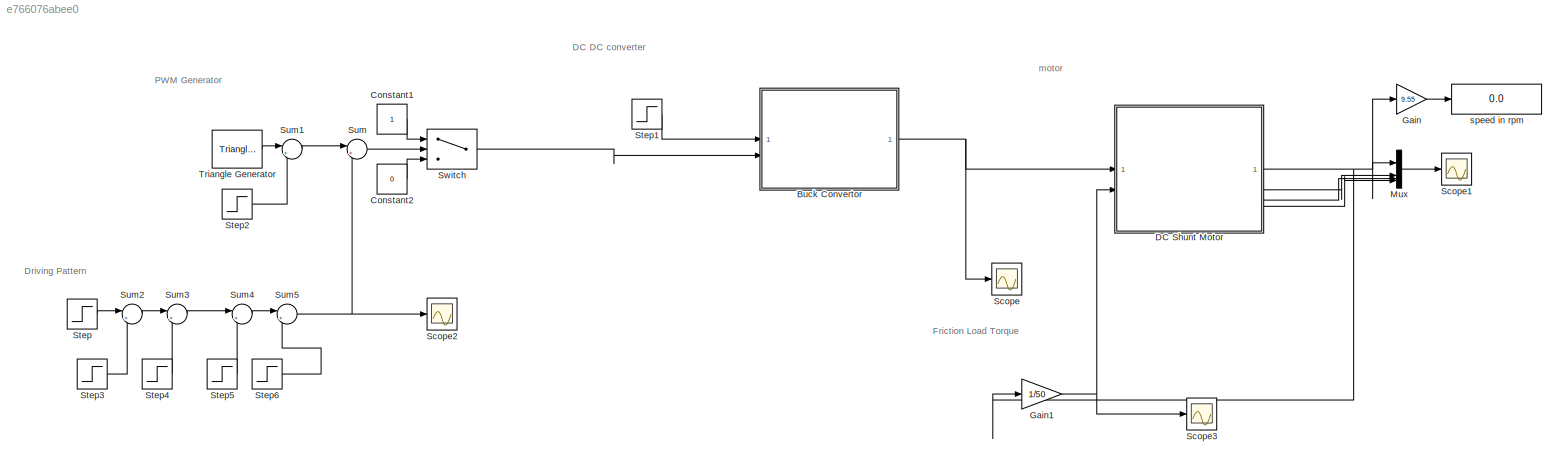
MODEL slx_e766076abee0
KIND model
CONFIG AbsTol = auto
CONFIG EnableMultiTasking = off
CONFIG FixedStep = auto
CONFIG MaxStep = auto
CONFIG MinStep = auto
CONFIG RelTol = 1e-3
CONFIG SampleTimeConstraint = Unconstrained
CONFIG SolverName = VariableStepAuto
CONFIG StartTime = 0.0
CONFIG StopTime = 10
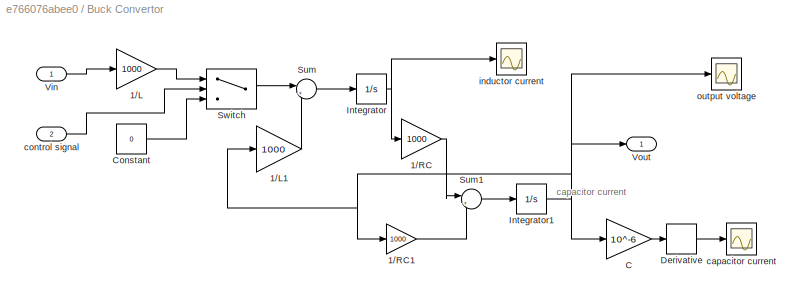
BLOCK [SubSystem] Buck Convertor
BLOCK [Gain] Buck Convertor/1//L
  Gain = 1000
BLOCK [Gain] Buck Convertor/1//L1
  Gain = 1000
BLOCK [Gain] Buck Convertor/1//RC
  Gain = 1000
BLOCK [Gain] Buck Convertor/1//RC1
  Gain = 1000
BLOCK [Gain] Buck Convertor/C
  Gain = 10^-6
BLOCK [Constant] Buck Convertor/Constant
  Value = 0
BLOCK [Derivative] Buck Convertor/Derivative
BLOCK [Integrator] Buck Convertor/Integrator
BLOCK [Integrator] Buck Convertor/Integrator1
BLOCK [Sum] Buck Convertor/Sum
  Inputs = |+-
BLOCK [Sum] Buck Convertor/Sum1
  Inputs = |+-
BLOCK [Switch] Buck Convertor/Switch
  Criteria = u2 > Threshold
  InputSameDT = off
  SaturateOnIntegerOverflow = off
  Threshold = 0.5
BLOCK [Inport] Buck Convertor/Vin
BLOCK [Outport] Buck Convertor/Vout
BLOCK [Scope] Buck Convertor/capacitor current
  Floating = off
  NumInputPorts = 1
  ScopeSpecificationString = Simulink.scopes.TimeScopeBlockCfg('CurrentConfiguration', extmgr.ConfigurationSet(extmgr.Configuration('Core','General UI',true),extmgr.Configuration('Core','Source UI',true),extmgr.Configuration('Sources','WiredSimulink',true,'DataLoggingVariableName','ScopeData2'),extmgr.Configuration('Visuals','Time Domain',true,'SerializedDisplays',{struct('MinYLimReal','-0.14224','MaxYLimReal','0.11943','YLab...<+1411ch>
BLOCK [Inport] Buck Convertor/control signal
  Port = 2
BLOCK [Scope] Buck Convertor/inductor current
  Floating = off
  NumInputPorts = 1
  ScopeSpecificationString = Simulink.scopes.TimeScopeBlockCfg('CurrentConfiguration', extmgr.ConfigurationSet(extmgr.Configuration('Core','General UI',true),extmgr.Configuration('Core','Source UI',true),extmgr.Configuration('Sources','WiredSimulink',true,'DataLoggingVariableName','ScopeData1'),extmgr.Configuration('Visuals','Time Domain',true,'SerializedDisplays',{struct('MinYLimReal','-52.93589','MaxYLimReal','290.861','YLa...<+1432ch>
BLOCK [Scope] Buck Convertor/output voltage
  Floating = off
  NumInputPorts = 1
  ScopeSpecificationString = Simulink.scopes.TimeScopeBlockCfg('CurrentConfiguration', extmgr.ConfigurationSet(extmgr.Configuration('Core','General UI',true),extmgr.Configuration('Core','Source UI',true),extmgr.Configuration('Sources','WiredSimulink',true,'DataLoggingVariableName','ScopeData7'),extmgr.Configuration('Visuals','Time Domain',true,'SerializedDisplays',{struct('MinYLimReal','-30.00000','MaxYLimReal','270.00000','Y...<+1467ch>
BLOCK [Constant] Constant1
BLOCK [Constant] Constant2
  Value = 0
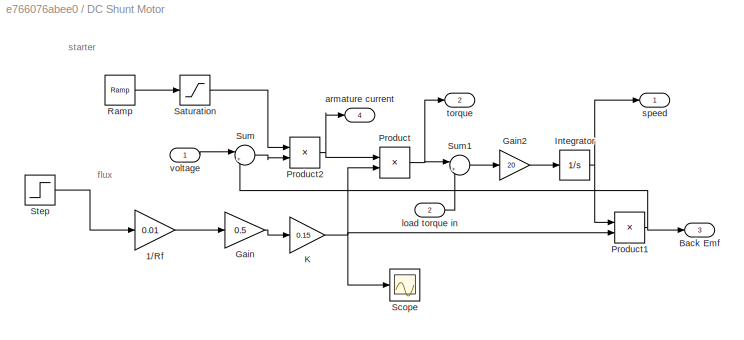
BLOCK [SubSystem] DC Shunt Motor
BLOCK [Gain] DC Shunt Motor/1//Rf
  Gain = 0.01
BLOCK [Outport] DC Shunt Motor/Back Emf
  Port = 3
BLOCK [Gain] DC Shunt Motor/Gain
  Gain = 0.5
BLOCK [Gain] DC Shunt Motor/Gain2
  Gain = 20
BLOCK [Integrator] DC Shunt Motor/Integrator
BLOCK [Gain] DC Shunt Motor/K
  Gain = 0.15
BLOCK [Product] DC Shunt Motor/Product
BLOCK [Product] DC Shunt Motor/Product1
BLOCK [Product] DC Shunt Motor/Product2
BLOCK [Reference] DC Shunt Motor/Ramp  REF=simulink/Sources/Ramp
  SourceBlock = simulink/Sources/Ramp
  SourceType = Ramp
BLOCK [Saturate] DC Shunt Motor/Saturation
  LowerLimit = 0.01
  UpperLimit = 5
BLOCK [Scope] DC Shunt Motor/Scope
  Floating = off
  NumInputPorts = 1
  ScopeSpecificationString = Simulink.scopes.TimeScopeBlockCfg('CurrentConfiguration', extmgr.ConfigurationSet(extmgr.Configuration('Core','General UI',true),extmgr.Configuration('Core','Source UI',true),extmgr.Configuration('Sources','WiredSimulink',true,'DataLoggingVariableName','ScopeData3'),extmgr.Configuration('Visuals','Time Domain',true,'SerializedDisplays',{struct('MinYLimReal','0.065','MaxYLimReal','0.265','YLabelRea...<+1384ch>
BLOCK [Step] DC Shunt Motor/Step
  After = 220
  SampleTime = 0
  Time = 0
BLOCK [Sum] DC Shunt Motor/Sum
  Inputs = |+-
BLOCK [Sum] DC Shunt Motor/Sum1
  Inputs = |+-
BLOCK [Outport] DC Shunt Motor/armature current
  Port = 4
BLOCK [Inport] DC Shunt Motor/load torque in
  Port = 2
BLOCK [Outport] DC Shunt Motor/speed
BLOCK [Outport] DC Shunt Motor/torque
  Port = 2
BLOCK [Inport] DC Shunt Motor/voltage
BLOCK [Gain] Gain
  Gain = 9.55
BLOCK [Gain] Gain1
  Gain = 1/50
BLOCK [Mux] Mux
  DisplayOption = bar
BLOCK [Scope] Scope
  Floating = off
  NumInputPorts = 1
  ScopeSpecificationString = Simulink.scopes.TimeScopeBlockCfg('CurrentConfiguration', extmgr.ConfigurationSet(extmgr.Configuration('Core','General UI',true),extmgr.Configuration('Core','Source UI',true),extmgr.Configuration('Sources','WiredSimulink',true,'DataLoggingVariableName','ScopeData4'),extmgr.Configuration('Visuals','Time Domain',true,'SerializedDisplays',{struct('MinYLimReal','-42.37007','MaxYLimReal','281.05665','Y...<+1424ch>
BLOCK [Scope] Scope1
  Floating = off
  NumInputPorts = 1
  ScopeSpecificationString = Simulink.scopes.TimeScopeBlockCfg('CurrentConfiguration', extmgr.ConfigurationSet(extmgr.Configuration('Core','General UI',true),extmgr.Configuration('Core','Source UI',true),extmgr.Configuration('Sources','WiredSimulink',true),extmgr.Configuration('Visuals','Time Domain',true,'SerializedDisplays',{struct('MinYLimReal','-124.79095','MaxYLimReal','744.9713','YLabelReal','','MinYLimMag',' 0.00000','...<+1578ch>
BLOCK [Scope] Scope2
  Floating = off
  NumInputPorts = 1
  ScopeSpecificationString = Simulink.scopes.TimeScopeBlockCfg('CurrentConfiguration', extmgr.ConfigurationSet(extmgr.Configuration('Core','General UI',true),extmgr.Configuration('Core','Source UI',true),extmgr.Configuration('Sources','WiredSimulink',true,'DataLoggingVariableName','ScopeData5'),extmgr.Configuration('Visuals','Time Domain',true,'SerializedDisplays',{struct('MinYLimReal','-0.25','MaxYLimReal','2.25','YLabelReal...<+1413ch>
BLOCK [Scope] Scope3
  Floating = off
  NumInputPorts = 1
  ScopeSpecificationString = Simulink.scopes.TimeScopeBlockCfg('CurrentConfiguration', extmgr.ConfigurationSet(extmgr.Configuration('Core','General UI',true),extmgr.Configuration('Core','Source UI',true),extmgr.Configuration('Sources','WiredSimulink',true,'DataLoggingVariableName','ScopeData6'),extmgr.Configuration('Visuals','Time Domain',true,'SerializedDisplays',{struct('MinYLimReal','-1.82854','MaxYLimReal','16.45684','YLa...<+1410ch>
BLOCK [Step] Step
  SampleTime = 0
  Time = 0
BLOCK [Step] Step1
  After = 240
  SampleTime = 0
  Time = 0
BLOCK [Step] Step2
  SampleTime = 0
  Time = 0
BLOCK [Step] Step3
  After = 0.5
  SampleTime = 0
BLOCK [Step] Step4
  After = 0.5
  SampleTime = 0
  Time = 2
BLOCK [Step] Step5
  After = 1.5
  SampleTime = 0
  Time = 3
BLOCK [Step] Step6
  After = 0.5
  SampleTime = 0
  Time = 4
BLOCK [Sum] Sum
  Inputs = |+-
BLOCK [Sum] Sum1
  Inputs = |++
BLOCK [Sum] Sum2
  Inputs = |+-
BLOCK [Sum] Sum3
  Inputs = |+-
BLOCK [Sum] Sum4
  Inputs = |++
BLOCK [Sum] Sum5
  Inputs = |++
BLOCK [Switch] Switch
  InputSameDT = off
  SaturateOnIntegerOverflow = off
BLOCK [Reference] Triangle Generator  REF=spsTriangleGeneratorLib/Triangle
Generator
  LibrarySourceBlock = sps_lib/Sources/Signal Generator Sources/Triangle\nGenerator
  SourceBlock = spsTriangleGeneratorLib/Triangle\nGenerator
  SourceType = Triangle Generator
BLOCK [Display] speed in rpm
  Decimation = 1
ANNOTATION (root): DC DC converter
ANNOTATION (root): Driving Pattern duty cycle = 1- V/2 (0% for V=2 and 100% for V=0)
ANNOTATION (root): Friction Load Torque
ANNOTATION (root): PWM Generator
ANNOTATION (root): motor
ANNOTATION Buck Convertor: capacitor current
ANNOTATION DC Shunt Motor: flux
ANNOTATION DC Shunt Motor: starter
LINE Buck Convertor/1//L1:1 -> Buck Convertor/Sum:2
LINE Buck Convertor/1//L:1 -> Buck Convertor/Switch:1
LINE Buck Convertor/1//RC1:1 -> Buck Convertor/Sum1:2
LINE Buck Convertor/1//RC:1 -> Buck Convertor/Sum1:1
LINE Buck Convertor/C:1 -> Buck Convertor/Derivative:1
LINE Buck Convertor/Constant:1 -> Buck Convertor/Switch:3
LINE Buck Convertor/Derivative:1 -> Buck Convertor/capacitor current:1
NET Buck Convertor/Integrator1:1 -> Buck Convertor/1//L1:1, Buck Convertor/1//RC1:1, Buck Convertor/C:1, Buck Convertor/Vout:1, Buck Convertor/output voltage:1
NET Buck Convertor/Integrator:1 -> Buck Convertor/1//RC:1, Buck Convertor/inductor current:1
LINE Buck Convertor/Sum1:1 -> Buck Convertor/Integrator1:1
LINE Buck Convertor/Sum:1 -> Buck Convertor/Integrator:1
LINE Buck Convertor/Switch:1 -> Buck Convertor/Sum:1
LINE Buck Convertor/Vin:1 -> Buck Convertor/1//L:1
LINE Buck Convertor/control signal:1 -> Buck Convertor/Switch:2
NET Buck Convertor:1 -> DC Shunt Motor:1, Scope:1
LINE Constant1:1 -> Switch:1
LINE Constant2:1 -> Switch:3
LINE DC Shunt Motor/1//Rf:1 -> DC Shunt Motor/Gain:1
LINE DC Shunt Motor/Gain2:1 -> DC Shunt Motor/Integrator:1
LINE DC Shunt Motor/Gain:1 -> DC Shunt Motor/K:1
NET DC Shunt Motor/Integrator:1 -> DC Shunt Motor/Product1:1, DC Shunt Motor/speed:1
NET DC Shunt Motor/K:1 -> DC Shunt Motor/Product1:2, DC Shunt Motor/Product:2, DC Shunt Motor/Scope:1
NET DC Shunt Motor/Product1:1 -> DC Shunt Motor/Back Emf:1, DC Shunt Motor/Sum:2
NET DC Shunt Motor/Product2:1 -> DC Shunt Motor/Product:1, DC Shunt Motor/armature current:1
NET DC Shunt Motor/Product:1 -> DC Shunt Motor/Sum1:1, DC Shunt Motor/torque:1
LINE DC Shunt Motor/Ramp:1 -> DC Shunt Motor/Saturation:1
LINE DC Shunt Motor/Saturation:1 -> DC Shunt Motor/Product2:1
LINE DC Shunt Motor/Step:1 -> DC Shunt Motor/1//Rf:1
LINE DC Shunt Motor/Sum1:1 -> DC Shunt Motor/Gain2:1
LINE DC Shunt Motor/Sum:1 -> DC Shunt Motor/Product2:2
LINE DC Shunt Motor/load torque in:1 -> DC Shunt Motor/Sum1:2
LINE DC Shunt Motor/voltage:1 -> DC Shunt Motor/Sum:1
NET DC Shunt Motor:1 -> Gain1:1, Gain:1, Mux:1
LINE DC Shunt Motor:2 -> Mux:2
LINE DC Shunt Motor:3 -> Mux:3
LINE DC Shunt Motor:4 -> Mux:4
NET Gain1:1 -> DC Shunt Motor:2, Scope3:1
LINE Gain:1 -> speed in rpm:1
LINE Mux:1 -> Scope1:1
LINE Step1:1 -> Buck Convertor:1
LINE Step2:1 -> Sum1:2
LINE Step3:1 -> Sum2:2
LINE Step4:1 -> Sum3:2
LINE Step5:1 -> Sum4:2
LINE Step6:1 -> Sum5:2
LINE Step:1 -> Sum2:1
LINE Sum1:1 -> Sum:1
LINE Sum2:1 -> Sum3:1
LINE Sum3:1 -> Sum4:1
LINE Sum4:1 -> Sum5:1
NET Sum5:1 -> Scope2:1, Sum:2
LINE Sum:1 -> Switch:2
LINE Switch:1 -> Buck Convertor:2
LINE Triangle Generator:1 -> Sum1:1
note: NET lines group one-source signal fan-out (src -> all destinations, sorted); 1:1 wires keep LINE
